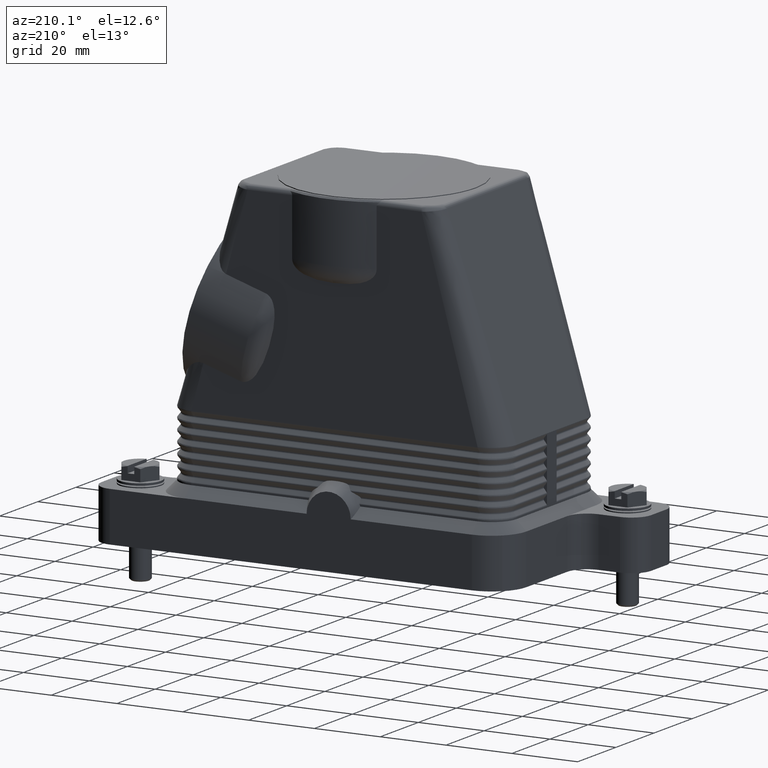
[diagram: clean part render]
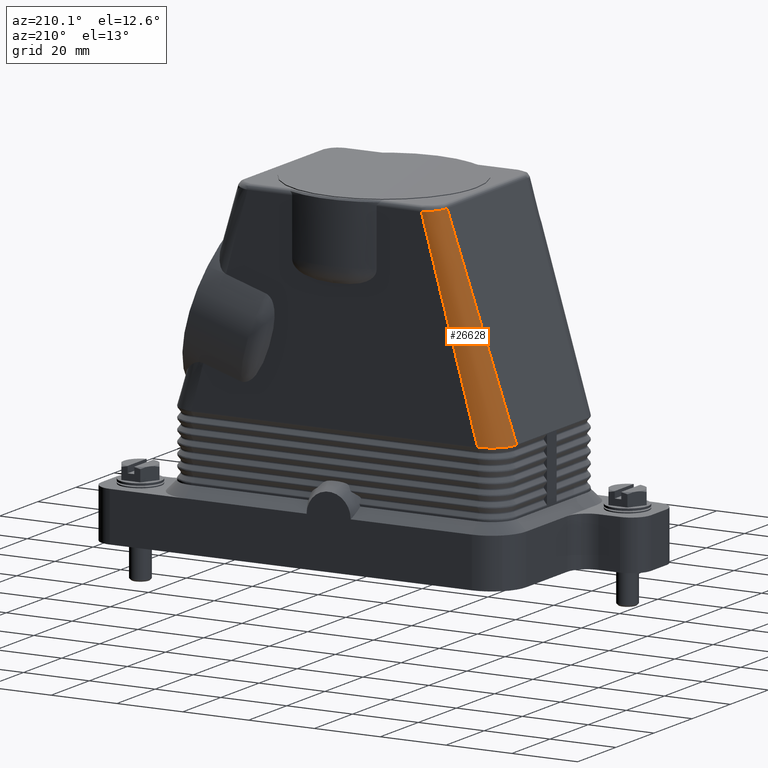
[diagram: same view with one face highlighted and labeled with its STEP entity id]
A machine part, auxiliary view. The second image highlights one B-rep face of the part: STEP entity #26628.
In plain terms, the highlighted face is a freeform B-spline surface patch.
Its self-contained STEP definition (entity closure, byte-faithful):
#4630=CARTESIAN_POINT('',(-26.416666666666657,26.000000000000007,99.500000000000028));
#4631=VERTEX_POINT('',#4630);
#5465=CARTESIAN_POINT('',(-31.332105175034833,20.958486853120650,99.953868698640278));
#5466=VERTEX_POINT('',#5465);
#22809=CARTESIAN_POINT('',(-51.0,18.500000000000007,38.0));
#22810=VERTEX_POINT('',#22809);
#23059=CARTESIAN_POINT('',(-43.500000000000000,26.000000000000007,38.0));
#23060=VERTEX_POINT('',#23059);
#23061=CARTESIAN_POINT('',(-43.500000000000000,18.500000000000007,38.0));
#23062=DIRECTION('',(0.0,0.0,-1.0));
#23063=DIRECTION('',(0.0,1.0,0.0));
#23064=AXIS2_PLACEMENT_3D('',#23061,#23062,#23063);
#23065=CIRCLE('',#23064,7.500000000000000);
#23066=EDGE_CURVE('',#22810,#23060,#23065,.T.);
#23630=CARTESIAN_POINT('',(-26.416666666666657,26.000000000000007,99.500000000000028));
#23631=DIRECTION('',(-0.267643863786095,0.0,-0.963517909629941));
#23632=VECTOR('',#23631,63.828600781920500);
#23633=LINE('',#23630,#23632);
#23634=EDGE_CURVE('',#4631,#23060,#23633,.T.);
#24906=CARTESIAN_POINT('',(-32.485845874781567,20.814269265652300,96.319585494437973));
#24907=VERTEX_POINT('',#24906);
#24908=CARTESIAN_POINT('',(-31.332105175034833,20.958486853120650,99.953868698640278));
#24909=DIRECTION('',(-0.302362939589654,-0.037795367448709,-0.952443259707433));
#24910=VECTOR('',#24909,3.815747727920996);
#24911=LINE('',#24908,#24910);
#24912=EDGE_CURVE('',#5466,#24907,#24911,.T.);
#24914=CARTESIAN_POINT('',(-32.485845874781567,20.814269265652300,96.319585494437973));
#24915=DIRECTION('',(-0.302362939589661,-0.037795367448707,-0.952443259707431));
#24916=VECTOR('',#24915,61.231558835696362);
#24917=LINE('',#24914,#24916);
#24918=EDGE_CURVE('',#24907,#22810,#24917,.T.);
#26559=CARTESIAN_POINT('',(-26.0,26.000000000000007,101.000000000000010));
#26560=CARTESIAN_POINT('',(-26.981747704246814,26.000000000000007,101.000000000000010));
#26561=CARTESIAN_POINT('',(-27.961557782069004,25.702777862327586,101.000000000000010));
#26562=CARTESIAN_POINT('',(-29.049948959441014,24.975538127907775,101.000000000000010));
#26563=CARTESIAN_POINT('',(-29.304133752903656,24.766934058961823,101.000000000000010));
#26564=CARTESIAN_POINT('',(-29.998334211990901,24.072733599874582,101.000000000000010));
#26565=CARTESIAN_POINT('',(-30.368931941771290,23.518094901854504,101.000000000000010));
#26566=CARTESIAN_POINT('',(-30.869863383341581,22.308739421796403,101.000000000000010));
#26567=CARTESIAN_POINT('',(-31.0,21.654498469497877,101.000000000000010));
#26568=CARTESIAN_POINT('',(-31.0,21.000000000000007,101.000000000000010));
#26569=CARTESIAN_POINT('',(-31.833333333333332,26.000000000000007,80.000000000000014));
#26570=CARTESIAN_POINT('',(-32.978705654954609,26.000000000000007,80.000000000000014));
#26571=CARTESIAN_POINT('',(-34.121817412413840,25.653240839382185,80.000000000000014));
#26572=CARTESIAN_POINT('',(-35.391607119347846,24.804794482559075,80.000000000000014));
#26573=CARTESIAN_POINT('',(-35.688156045054264,24.561423068788795,80.000000000000014));
#26574=CARTESIAN_POINT('',(-36.498056580656048,23.751522533187011,80.000000000000014));
#26575=CARTESIAN_POINT('',(-36.930420598733164,23.104444052163586,80.000000000000014));
#26576=CARTESIAN_POINT('',(-37.514840613898507,21.693529325429139,80.000000000000014));
#26577=CARTESIAN_POINT('',(-37.666666666666664,20.930248214414192,80.000000000000014));
#26578=CARTESIAN_POINT('',(-37.666666666666664,20.166666666666671,80.000000000000014));
#26579=CARTESIAN_POINT('',(-37.666666666666664,26.000000000000007,59.000000000000014));
#26580=CARTESIAN_POINT('',(-38.975663605662419,26.000000000000007,59.000000000000014));
#26581=CARTESIAN_POINT('',(-40.282077042758672,25.603703816436788,59.000000000000014));
#26582=CARTESIAN_POINT('',(-41.733265279254688,24.634050837210367,59.000000000000014));
#26583=CARTESIAN_POINT('',(-42.072178337204875,24.355912078615766,59.000000000000014));
#26584=CARTESIAN_POINT('',(-42.997778949321201,23.430311466499436,59.000000000000014));
#26585=CARTESIAN_POINT('',(-43.491909255695049,22.690793202472666,59.000000000000014));
#26586=CARTESIAN_POINT('',(-44.159817844455432,21.078319229061869,59.000000000000014));
#26587=CARTESIAN_POINT('',(-44.333333333333336,20.205997959330503,59.000000000000014));
#26588=CARTESIAN_POINT('',(-44.333333333333336,19.333333333333339,59.000000000000014));
#26589=CARTESIAN_POINT('',(-43.500000000000000,26.000000000000007,38.000000000000007));
#26590=CARTESIAN_POINT('',(-44.972621556370214,26.000000000000007,38.000000000000007));
#26591=CARTESIAN_POINT('',(-46.442336673103497,25.554166793491383,38.000000000000007));
#26592=CARTESIAN_POINT('',(-48.074923439161523,24.463307191861663,38.000000000000007));
#26593=CARTESIAN_POINT('',(-48.456200629355479,24.150401088442734,38.000000000000007));
#26594=CARTESIAN_POINT('',(-49.497501317986348,23.109100399811865,38.000000000000007));
#26595=CARTESIAN_POINT('',(-50.053397912656919,22.277142352781748,38.000000000000007));
#26596=CARTESIAN_POINT('',(-50.804795075012365,20.463109132694605,38.000000000000007));
#26597=CARTESIAN_POINT('',(-51.0,19.481747704246814,38.000000000000007));
#26598=CARTESIAN_POINT('',(-51.0,18.500000000000007,38.000000000000007));
#26599=B_SPLINE_SURFACE_WITH_KNOTS('',3,3,((#26559,#26569,#26579,#26589),(#26560,#26570,#26580,#26590),(#26561,#26571,#26581,#26591),(#26562,#26572,#26582,#26592),(#26563,#26573,#26583,#26593),(#26564,#26574,#26584,#26594),(#26565,#26575,#26585,#26595),(#26566,#26576,#26586,#26596),(#26567,#26577,#26587,#26597),(#26568,#26578,#26588,#26598)),.UNSPECIFIED.,.F.,.F.,.U.,(4,2,2,2,4),(4,4),(0.0,0.375000000000000,0.500000000000000,0.750000000000000,1.0),(0.0,1.0),.UNSPECIFIED.);
#26600=ORIENTED_EDGE('',*,*,#24912,.F.);
#26601=CARTESIAN_POINT('',(-27.905293216610897,25.764717521965839,99.627948572547325));
#26602=VERTEX_POINT('',#26601);
#26603=CARTESIAN_POINT('',(-27.905293216610897,25.764717521965839,99.627948572547325));
#26604=CARTESIAN_POINT('',(-28.313995071921685,25.632249854971960,99.663660626521349));
#26605=CARTESIAN_POINT('',(-28.703782878389536,25.445687800416316,99.698114784967515));
#26606=CARTESIAN_POINT('',(-29.770729212553579,24.749134784373137,99.793239488095992));
#26607=CARTESIAN_POINT('',(-30.345942790707959,24.109967710480280,99.845540643006160));
#26608=CARTESIAN_POINT('',(-30.979714340642985,22.917145549277794,99.907013323093082));
#26609=CARTESIAN_POINT('',(-31.150196666032155,22.426775352305892,99.924955662553060));
#26610=CARTESIAN_POINT('',(-31.304254565317294,21.600695289032082,99.945101530128909));
#26611=CARTESIAN_POINT('',(-31.333142322428959,21.277932092822041,99.950601684348825));
#26612=CARTESIAN_POINT('',(-31.332105175034851,20.958486853120654,99.953868698640278));
#26613=B_SPLINE_CURVE_WITH_KNOTS('',3,(#26603,#26604,#26605,#26606,#26607,#26608,#26609,#26610,#26611,#26612),.UNSPECIFIED.,.F.,.U.,(4,2,2,2,4),(-0.443908808757417,-0.354212277025595,-0.178479054315222,-0.068645790121239,0.0),.UNSPECIFIED.);
#26614=EDGE_CURVE('',#26602,#5466,#26613,.T.);
#26615=ORIENTED_EDGE('',*,*,#26614,.F.);
#26616=CARTESIAN_POINT('',(-26.416666666666657,26.000000000000007,99.500000000000028));
#26617=CARTESIAN_POINT('',(-26.920347547396709,26.000000000000007,99.542450696302353));
#26618=CARTESIAN_POINT('',(-27.425687821663580,25.920166309194951,99.586041021778883));
#26619=CARTESIAN_POINT('',(-27.905293216610897,25.764717521965839,99.627948572547325));
#26620=B_SPLINE_CURVE_WITH_KNOTS('',3,(#26616,#26617,#26618,#26619),.UNSPECIFIED.,.F.,.U.,(4,4),(-0.549166320969914,-0.443908808757417),.UNSPECIFIED.);
#26621=EDGE_CURVE('',#4631,#26602,#26620,.T.);
#26622=ORIENTED_EDGE('',*,*,#26621,.F.);
#26623=ORIENTED_EDGE('',*,*,#23634,.T.);
#26624=ORIENTED_EDGE('',*,*,#23066,.F.);
#26625=ORIENTED_EDGE('',*,*,#24918,.F.);
#26626=EDGE_LOOP('',(#26600,#26615,#26622,#26623,#26624,#26625));
#26627=FACE_OUTER_BOUND('',#26626,.T.);
#26628=ADVANCED_FACE('',(#26627),#26599,.F.);